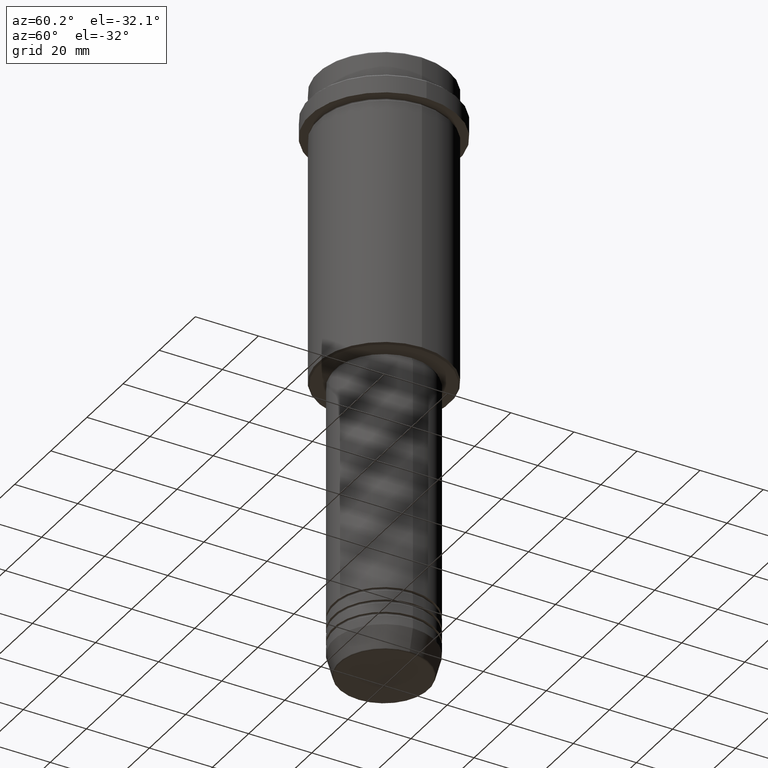
[diagram: clean part render]
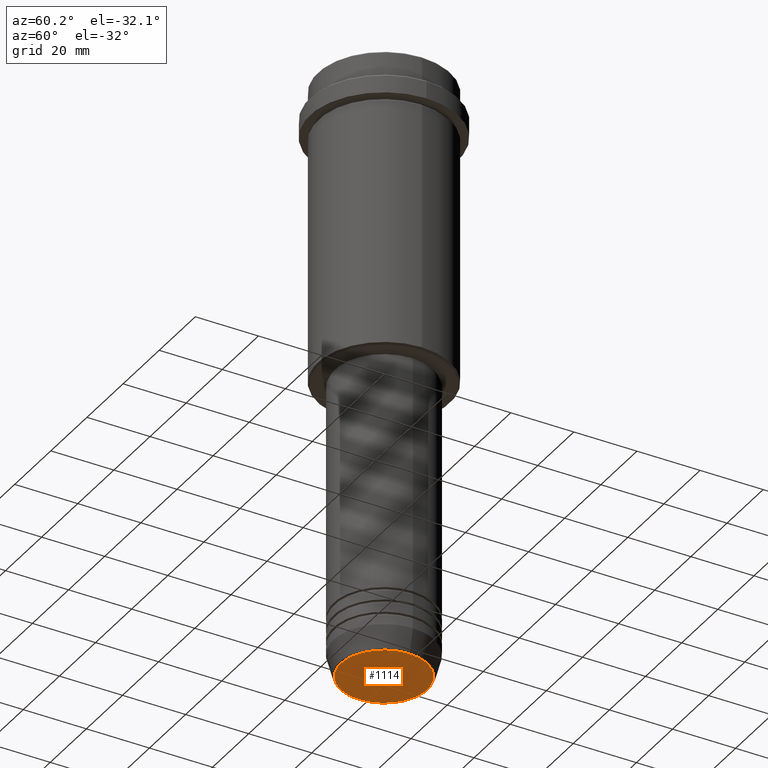
[diagram: same view with one face highlighted and labeled with its STEP entity id]
A machine part, auxiliary view. The second image highlights one B-rep face of the part: STEP entity #1114.
In plain terms, the highlighted planar face has unit normal (0, -0, 1).
Its self-contained STEP definition (entity closure, byte-faithful):
#3 = CARTESIAN_POINT ( 'NONE',  ( 0.000000000000000000, 0.000000000000000000, -190.0000000000000000 ) ) ;
#13 = AXIS2_PLACEMENT_3D ( 'NONE', #162, #597, #475 ) ;
#25 = CARTESIAN_POINT ( 'NONE',  ( 0.000000000000000000, 0.000000000000000000, -190.0000000000000000 ) ) ;
#60 = EDGE_CURVE ( 'NONE', #389, #138, #409, .T. ) ;
#68 = EDGE_LOOP ( 'NONE', ( #507, #700 ) ) ;
#95 = CARTESIAN_POINT ( 'NONE',  ( -13.74069215899265828, 1.712322416342415986E-15, -190.0000000000000000 ) ) ;
#138 = VERTEX_POINT ( 'NONE', #201 ) ;
#162 = CARTESIAN_POINT ( 'NONE',  ( 0.000000000000000000, 0.000000000000000000, -190.0000000000000000 ) ) ;
#201 = CARTESIAN_POINT ( 'NONE',  ( 13.74069215899265828, 0.000000000000000000, -190.0000000000000000 ) ) ;
#271 = AXIS2_PLACEMENT_3D ( 'NONE', #25, #600, #696 ) ;
#389 = VERTEX_POINT ( 'NONE', #95 ) ;
#409 = CIRCLE ( 'NONE', #959, 13.74069215899265828 ) ;
#475 = DIRECTION ( 'NONE',  ( 1.000000000000000000, 0.000000000000000000, 0.000000000000000000 ) ) ;
#507 = ORIENTED_EDGE ( 'NONE', *, *, #711, .T. ) ;
#559 = FACE_OUTER_BOUND ( 'NONE', #68, .T. ) ;
#597 = DIRECTION ( 'NONE',  ( 0.000000000000000000, 0.000000000000000000, -1.000000000000000000 ) ) ;
#600 = DIRECTION ( 'NONE',  ( 0.000000000000000000, -0.000000000000000000, 1.000000000000000000 ) ) ;
#643 = DIRECTION ( 'NONE',  ( 0.000000000000000000, 0.000000000000000000, -1.000000000000000000 ) ) ;
#696 = DIRECTION ( 'NONE',  ( 1.000000000000000000, 0.000000000000000000, 0.000000000000000000 ) ) ;
#700 = ORIENTED_EDGE ( 'NONE', *, *, #60, .T. ) ;
#711 = EDGE_CURVE ( 'NONE', #138, #389, #962, .T. ) ;
#959 = AXIS2_PLACEMENT_3D ( 'NONE', #3, #643, #1402 ) ;
#962 = CIRCLE ( 'NONE', #13, 13.74069215899265828 ) ;
#1114 = ADVANCED_FACE ( 'NONE', ( #559 ), #1118, .F. ) ;
#1118 = PLANE ( 'NONE',  #271 ) ;
#1402 = DIRECTION ( 'NONE',  ( 1.000000000000000000, 0.000000000000000000, 0.000000000000000000 ) ) ;